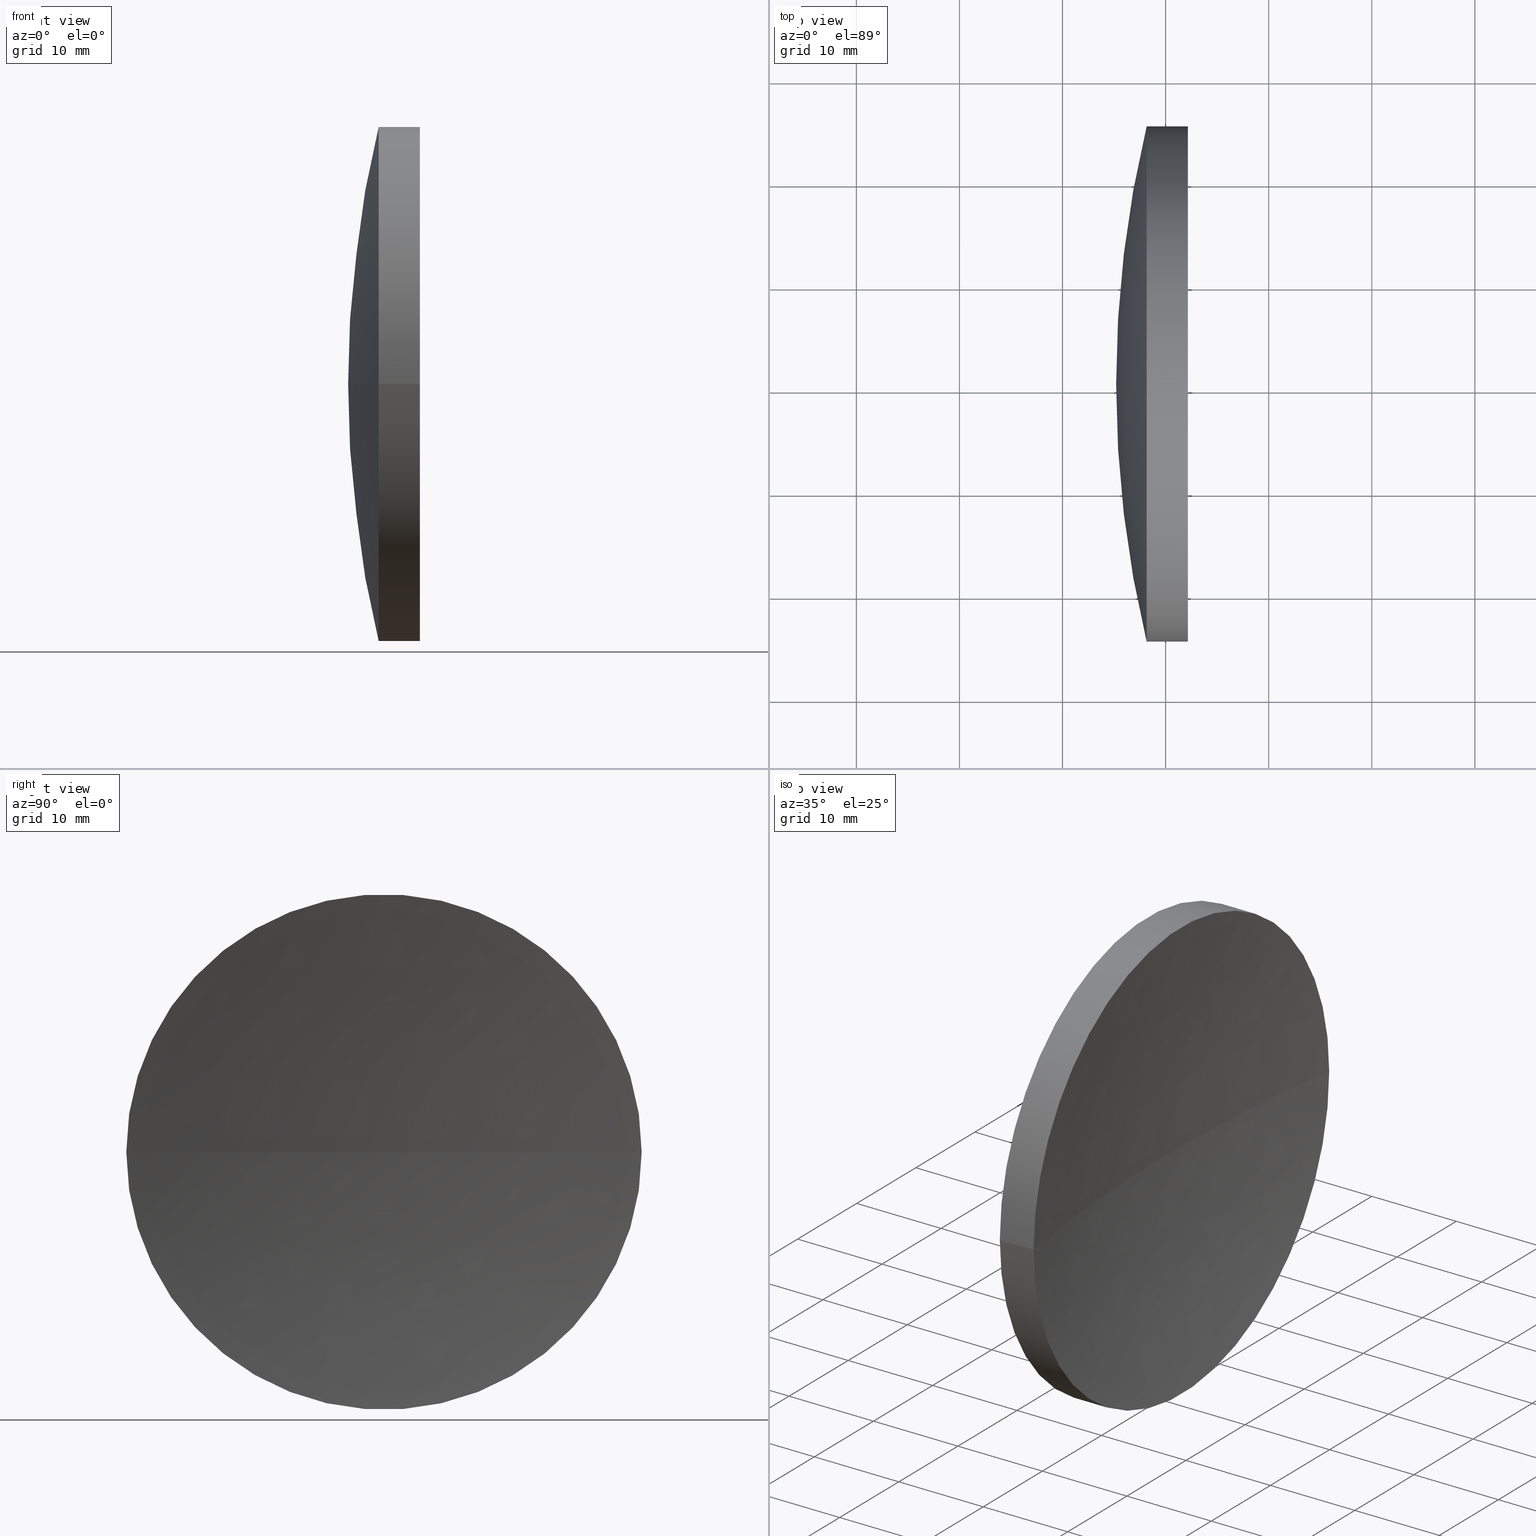
[diagram: canonical four-view strip — front | top / right | iso, engineering-drawing reading convention]
A machine part, canonical four-view strip (front | top / right | iso — engineering-drawing reading convention). The complete STEP part file that produces these views, byte-faithful:
ISO-10303-21;
HEADER;
FILE_DESCRIPTION (( 'STEP AP214' ),
    '1' );
FILE_NAME ('150055.STEP',
    '2019-07-05T09:11:28',
    ( '' ),
    ( '' ),
    'SwSTEP 2.0',
    'SolidWorks 2016',
    '' );
FILE_SCHEMA (( 'AUTOMOTIVE_DESIGN' ));
ENDSEC;

DATA;
#1 = PRODUCT_DEFINITION_FORMATION_WITH_SPECIFIED_SOURCE ( '�κ�', '', #119, .NOT_KNOWN. ) ;
#2 = CYLINDRICAL_SURFACE ( 'NONE', #149, 24.99999999999991100 ) ;
#3 = CARTESIAN_POINT ( 'NONE',  ( 410.6989956717488900, 130.4336809418806000, 0.0000000000000000000 ) ) ;
#4 = DIRECTION ( 'NONE',  ( 1.110223024625161100E-015, -1.000000000000000000, 0.0000000000000000000 ) ) ;
#5 = LINE ( 'NONE', #92, #168 ) ;
#6 = CARTESIAN_POINT ( 'NONE',  ( 231.8889825959263400, 130.4336809418806500, 0.0000000000000000000 ) ) ;
#7 = AXIS2_PLACEMENT_3D ( 'NONE', #153, #66, #132 ) ;
#8 = CARTESIAN_POINT ( 'NONE',  ( 245.1989956717489200, 130.4336809418805100, 0.0000000000000000000 ) ) ;
#9 = FILL_AREA_STYLE ('',( #72 ) ) ;
#10 =( NAMED_UNIT ( * ) SI_UNIT ( $, .STERADIAN. ) SOLID_ANGLE_UNIT ( ) );
#11 = EDGE_CURVE ( 'NONE', #169, #144, #126, .T. ) ;
#12 = CIRCLE ( 'NONE', #109, 24.99999999999989700 ) ;
#13 = COLOUR_RGB ( '',1.000000000000000000, 1.000000000000000000, 1.000000000000000000 ) ;
#14 = FACE_OUTER_BOUND ( 'NONE', #65, .T. ) ;
#15 = VERTEX_POINT ( 'NONE', #89 ) ;
#16 = CARTESIAN_POINT ( 'NONE',  ( 352.1989956717488900, 130.4336809418805700, 0.0000000000000000000 ) ) ;
#17 = CARTESIAN_POINT ( 'NONE',  ( 410.6989956717488900, 130.4336809418806000, 0.0000000000000000000 ) ) ;
#18 =( GEOMETRIC_REPRESENTATION_CONTEXT ( 3 ) GLOBAL_UNCERTAINTY_ASSIGNED_CONTEXT ( ( #84 ) ) GLOBAL_UNIT_ASSIGNED_CONTEXT ( ( #25, #70, #10 ) ) REPRESENTATION_CONTEXT ( 'NONE', 'WORKASPACE' ) );
#19 = DIRECTION ( 'NONE',  ( -8.496118506040342700E-032, 1.224646799147353200E-016, -1.000000000000000000 ) ) ;
#20 = DIRECTION ( 'NONE',  ( -1.000000000000000000, -6.937607244762875000E-016, -0.0000000000000000000 ) ) ;
#21 = DIRECTION ( 'NONE',  ( -6.917277411994742600E-016, 1.000000000000000000, 0.0000000000000000000 ) ) ;
#22 = ORIENTED_EDGE ( 'NONE', *, *, #57, .F. ) ;
#23 = PRODUCT_RELATED_PRODUCT_CATEGORY ( 'part', '', ( #119 ) ) ;
#24 = CARTESIAN_POINT ( 'NONE',  ( 410.6989956717488900, 130.4336809418806000, 0.0000000000000000000 ) ) ;
#25 =( LENGTH_UNIT ( ) NAMED_UNIT ( * ) SI_UNIT ( .MILLI., .METRE. ) );
#26 = EDGE_LOOP ( 'NONE', ( #183, #189, #160, #131 ) ) ;
#27 = EDGE_CURVE ( 'NONE', #169, #152, #76, .T. ) ;
#28 = ORIENTED_EDGE ( 'NONE', *, *, #145, .T. ) ;
#29 = PRESENTATION_STYLE_ASSIGNMENT (( #98 ) ) ;
#30 = CARTESIAN_POINT ( 'NONE',  ( 248.1605412426293100, 130.4336809418806500, 0.0000000000000000000 ) ) ;
#31 = CIRCLE ( 'NONE', #105, 160.5000000000000600 ) ;
#32 = DIRECTION ( 'NONE',  ( -0.0000000000000000000, 0.0000000000000000000, -1.000000000000000000 ) ) ;
#33 = ADVANCED_FACE ( 'NONE', ( #150 ), #88, .F. ) ;
#34 = DIRECTION ( 'NONE',  ( -5.187958058996059700E-016, 1.000000000000000000, 0.0000000000000000000 ) ) ;
#35 = PRODUCT_DEFINITION ( 'δ֪', '', #1, #59 ) ;
#36 = UNCERTAINTY_MEASURE_WITH_UNIT (LENGTH_MEASURE( 1.000000000000000100E-005 ), #123, 'distance_accuracy_value', 'NONE');
#37 = CARTESIAN_POINT ( 'NONE',  ( 252.1579915119416200, 130.4336809418806800, 0.0000000000000000000 ) ) ;
#38 = DIRECTION ( 'NONE',  ( -0.0000000000000000000, 0.0000000000000000000, -1.000000000000000000 ) ) ;
#39 = CIRCLE ( 'NONE', #95, 24.99999999999992500 ) ;
#40 =( NAMED_UNIT ( * ) PLANE_ANGLE_UNIT ( ) SI_UNIT ( $, .RADIAN. ) );
#41 = SURFACE_SIDE_STYLE ('',( #180 ) ) ;
#42 = DIRECTION ( 'NONE',  ( 1.110223024625160500E-015, -1.000000000000000000, 0.0000000000000000000 ) ) ;
#43 = VECTOR ( 'NONE', #135, 1000.000000000000000 ) ;
#44 = EDGE_CURVE ( 'NONE', #144, #152, #162, .T. ) ;
#45 = AXIS2_PLACEMENT_3D ( 'NONE', #86, #157, #42 ) ;
#46 = ORIENTED_EDGE ( 'NONE', *, *, #145, .F. ) ;
#47 = PRESENTATION_LAYER_ASSIGNMENT (  '', '', ( #90 ) ) ;
#48 = FACE_OUTER_BOUND ( 'NONE', #58, .T. ) ;
#49 = CARTESIAN_POINT ( 'NONE',  ( 252.1579915119416200, 105.4336809418807900, -3.061616997868347100E-015 ) ) ;
#50 = LINE ( 'NONE', #112, #43 ) ;
#51 = EDGE_CURVE ( 'NONE', #15, #100, #39, .T. ) ;
#52 = CARTESIAN_POINT ( 'NONE',  ( 0.0000000000000000000, 0.0000000000000000000, 0.0000000000000000000 ) ) ;
#53 = CARTESIAN_POINT ( 'NONE',  ( 252.1579915119416200, 130.4336809418806800, 0.0000000000000000000 ) ) ;
#54 = APPLICATION_PROTOCOL_DEFINITION ( 'draft international standard', 'automotive_design', 1998, #141 ) ;
#55 = EDGE_CURVE ( 'NONE', #100, #169, #50, .T. ) ;
#56 = FACE_OUTER_BOUND ( 'NONE', #26, .T. ) ;
#57 = EDGE_CURVE ( 'NONE', #15, #144, #5, .T. ) ;
#58 = EDGE_LOOP ( 'NONE', ( #181, #138, #46 ) ) ;
#59 = PRODUCT_DEFINITION_CONTEXT ( 'detailed design', #85, 'design' ) ;
#60 = CARTESIAN_POINT ( 'NONE',  ( 352.1989956717488900, 130.4336809418805700, 0.0000000000000000000 ) ) ;
#61 = ORIENTED_EDGE ( 'NONE', *, *, #80, .F. ) ;
#62 = DIRECTION ( 'NONE',  ( 0.0000000000000000000, 1.000000000000000000, 1.224646799147353000E-016 ) ) ;
#63 = FACE_OUTER_BOUND ( 'NONE', #178, .T. ) ;
#64 = AXIS2_PLACEMENT_3D ( 'NONE', #17, #120, #21 ) ;
#65 = EDGE_LOOP ( 'NONE', ( #133, #187, #71 ) ) ;
#66 = DIRECTION ( 'NONE',  ( -0.0000000000000000000, 0.0000000000000000000, 1.000000000000000000 ) ) ;
#67 = DIRECTION ( 'NONE',  ( 1.000000000000000000, 0.0000000000000000000, 0.0000000000000000000 ) ) ;
#68 = EDGE_CURVE ( 'NONE', #144, #169, #12, .T. ) ;
#69 = DIRECTION ( 'NONE',  ( -1.000000000000000000, -6.937607244762875000E-016, -0.0000000000000000000 ) ) ;
#70 =( NAMED_UNIT ( * ) PLANE_ANGLE_UNIT ( ) SI_UNIT ( $, .RADIAN. ) );
#71 = ORIENTED_EDGE ( 'NONE', *, *, #44, .F. ) ;
#72 = FILL_AREA_STYLE_COLOUR ( '', #13 ) ;
#73 = PRESENTATION_LAYER_ASSIGNMENT (  '', '', ( #171 ) ) ;
#74 = FACE_OUTER_BOUND ( 'NONE', #102, .T. ) ;
#75 = ADVANCED_BREP_SHAPE_REPRESENTATION ( '150055', ( #128, #179 ), #155 ) ;
#76 = CIRCLE ( 'NONE', #173, 106.9999999999999900 ) ;
#77 = ADVANCED_FACE ( 'NONE', ( #48 ), #186, .F. ) ;
#78 = DIRECTION ( 'NONE',  ( -1.000000000000000000, -6.937607244762875000E-016, -0.0000000000000000000 ) ) ;
#79 = CYLINDRICAL_SURFACE ( 'NONE', #45, 24.99999999999991100 ) ;
#80 = EDGE_CURVE ( 'NONE', #100, #106, #31, .T. ) ;
#81 = DIRECTION ( 'NONE',  ( -6.917277411994742600E-016, 1.000000000000000000, 0.0000000000000000000 ) ) ;
#82 = FILL_AREA_STYLE ('',( #159 ) ) ;
#83 = DIRECTION ( 'NONE',  ( 1.000000000000000000, 0.0000000000000000000, 0.0000000000000000000 ) ) ;
#84 = UNCERTAINTY_MEASURE_WITH_UNIT (LENGTH_MEASURE( 1.000000000000000100E-005 ), #25, 'distance_accuracy_value', 'NONE');
#85 = APPLICATION_CONTEXT ( 'automotive_design' ) ;
#86 = CARTESIAN_POINT ( 'NONE',  ( 231.8889825959263400, 130.4336809418806500, 0.0000000000000000000 ) ) ;
#87 = AXIS2_PLACEMENT_3D ( 'NONE', #53, #69, #124 ) ;
#88 = SPHERICAL_SURFACE ( 'NONE', #184, 160.5000000000000300 ) ;
#89 = CARTESIAN_POINT ( 'NONE',  ( 252.1579915119416200, 155.4336809418803700, 0.0000000000000000000 ) ) ;
#90 = STYLED_ITEM ( 'NONE', ( #29 ), #128 ) ;
#91 = ORIENTED_EDGE ( 'NONE', *, *, #68, .F. ) ;
#92 = CARTESIAN_POINT ( 'NONE',  ( 231.8889825959263100, 155.4336809418805700, 3.061616997868372000E-015 ) ) ;
#93 = ADVANCED_FACE ( 'NONE', ( #14 ), #116, .T. ) ;
#94 = CARTESIAN_POINT ( 'NONE',  ( 410.6989956717488900, 130.4336809418806000, 0.0000000000000000000 ) ) ;
#95 = AXIS2_PLACEMENT_3D ( 'NONE', #37, #166, #110 ) ;
#96 = EDGE_LOOP ( 'NONE', ( #61, #111, #28 ) ) ;
#97 =( NAMED_UNIT ( * ) SI_UNIT ( $, .STERADIAN. ) SOLID_ANGLE_UNIT ( ) );
#98 = SURFACE_STYLE_USAGE ( .BOTH. , #125 ) ;
#99 = DIRECTION ( 'NONE',  ( 0.0000000000000000000, -0.0000000000000000000, 1.000000000000000000 ) ) ;
#100 = VERTEX_POINT ( 'NONE', #49 ) ;
#101 = PRODUCT_DEFINITION_SHAPE ( 'NONE', 'NONE',  #35 ) ;
#102 = EDGE_LOOP ( 'NONE', ( #22, #143, #146, #91 ) ) ;
#103 = ADVANCED_FACE ( 'NONE', ( #74 ), #2, .T. ) ;
#104 = ORIENTED_EDGE ( 'NONE', *, *, #27, .F. ) ;
#105 = AXIS2_PLACEMENT_3D ( 'NONE', #94, #136, #62 ) ;
#106 = VERTEX_POINT ( 'NONE', #165 ) ;
#107 = CARTESIAN_POINT ( 'NONE',  ( 248.1605412426293100, 130.4336809418806500, 0.0000000000000000000 ) ) ;
#108 = DIRECTION ( 'NONE',  ( 0.0000000000000000000, 1.000000000000000000, 1.224646799147353200E-016 ) ) ;
#109 = AXIS2_PLACEMENT_3D ( 'NONE', #107, #20, #4 ) ;
#110 = DIRECTION ( 'NONE',  ( 0.0000000000000000000, -1.000000000000000000, 0.0000000000000000000 ) ) ;
#111 = ORIENTED_EDGE ( 'NONE', *, *, #51, .F. ) ;
#112 = CARTESIAN_POINT ( 'NONE',  ( 231.8889825959263600, 105.4336809418807400, 0.0000000000000000000 ) ) ;
#113 = APPLICATION_PROTOCOL_DEFINITION ( 'draft international standard', 'automotive_design', 1998, #85 ) ;
#114 = CARTESIAN_POINT ( 'NONE',  ( 352.1989956717488900, 130.4336809418805700, 0.0000000000000000000 ) ) ;
#115 = DIRECTION ( 'NONE',  ( -5.187958058996059700E-016, 1.000000000000000000, 0.0000000000000000000 ) ) ;
#116 = SPHERICAL_SURFACE ( 'NONE', #177, 106.9999999999999900 ) ;
#117 = AXIS2_PLACEMENT_3D ( 'NONE', #24, #99, #83 ) ;
#118 = PRESENTATION_STYLE_ASSIGNMENT (( #174 ) ) ;
#119 = PRODUCT ( '150055', '150055', '', ( #172 ) ) ;
#120 = DIRECTION ( 'NONE',  ( 0.0000000000000000000, 0.0000000000000000000, -1.000000000000000000 ) ) ;
#121 = CIRCLE ( 'NONE', #87, 24.99999999999992500 ) ;
#122 = DIRECTION ( 'NONE',  ( 1.110223024625161100E-015, -1.000000000000000000, 0.0000000000000000000 ) ) ;
#123 =( LENGTH_UNIT ( ) NAMED_UNIT ( * ) SI_UNIT ( .MILLI., .METRE. ) );
#124 = DIRECTION ( 'NONE',  ( 0.0000000000000000000, -1.000000000000000000, 0.0000000000000000000 ) ) ;
#125 = SURFACE_SIDE_STYLE ('',( #176 ) ) ;
#126 = CIRCLE ( 'NONE', #147, 24.99999999999989700 ) ;
#127 = AXIS2_PLACEMENT_3D ( 'NONE', #114, #38, #115 ) ;
#128 = MANIFOLD_SOLID_BREP ( '��ת1', #191 ) ;
#129 = ORIENTED_EDGE ( 'NONE', *, *, #44, .T. ) ;
#130 = SHAPE_DEFINITION_REPRESENTATION ( #101, #75 ) ;
#131 = ORIENTED_EDGE ( 'NONE', *, *, #55, .F. ) ;
#132 = DIRECTION ( 'NONE',  ( 1.000000000000000000, 0.0000000000000000000, 0.0000000000000000000 ) ) ;
#133 = ORIENTED_EDGE ( 'NONE', *, *, #68, .T. ) ;
#134 = CARTESIAN_POINT ( 'NONE',  ( 248.1605412426292500, 155.4336809418805400, 0.0000000000000000000 ) ) ;
#135 = DIRECTION ( 'NONE',  ( -1.000000000000000000, -6.937607244762875000E-016, -0.0000000000000000000 ) ) ;
#136 = DIRECTION ( 'NONE',  ( -8.496118506040342700E-032, 1.224646799147353200E-016, -1.000000000000000000 ) ) ;
#137 = DIRECTION ( 'NONE',  ( -1.000000000000000000, -6.937607244762875000E-016, -0.0000000000000000000 ) ) ;
#138 = ORIENTED_EDGE ( 'NONE', *, *, #80, .T. ) ;
#139 = ORIENTED_EDGE ( 'NONE', *, *, #11, .T. ) ;
#140 =( NAMED_UNIT ( * ) SI_UNIT ( $, .STERADIAN. ) SOLID_ANGLE_UNIT ( ) );
#141 = APPLICATION_CONTEXT ( 'automotive_design' ) ;
#142 = CARTESIAN_POINT ( 'NONE',  ( 248.1605412426293100, 105.4336809418806200, -3.061616997868368400E-015 ) ) ;
#143 = ORIENTED_EDGE ( 'NONE', *, *, #51, .T. ) ;
#144 = VERTEX_POINT ( 'NONE', #134 ) ;
#145 = EDGE_CURVE ( 'NONE', #15, #106, #190, .T. ) ;
#146 = ORIENTED_EDGE ( 'NONE', *, *, #55, .T. ) ;
#147 = AXIS2_PLACEMENT_3D ( 'NONE', #30, #78, #122 ) ;
#148 = SPHERICAL_SURFACE ( 'NONE', #127, 106.9999999999999900 ) ;
#149 = AXIS2_PLACEMENT_3D ( 'NONE', #6, #154, #167 ) ;
#150 = FACE_OUTER_BOUND ( 'NONE', #96, .T. ) ;
#151 = ADVANCED_FACE ( 'NONE', ( #56 ), #79, .T. ) ;
#152 = VERTEX_POINT ( 'NONE', #8 ) ;
#153 = CARTESIAN_POINT ( 'NONE',  ( 352.1989956717488900, 130.4336809418805700, 0.0000000000000000000 ) ) ;
#154 = DIRECTION ( 'NONE',  ( -1.000000000000000000, -6.937607244762875000E-016, -0.0000000000000000000 ) ) ;
#155 =( GEOMETRIC_REPRESENTATION_CONTEXT ( 3 ) GLOBAL_UNCERTAINTY_ASSIGNED_CONTEXT ( ( #175 ) ) GLOBAL_UNIT_ASSIGNED_CONTEXT ( ( #170, #158, #97 ) ) REPRESENTATION_CONTEXT ( 'NONE', 'WORKASPACE' ) );
#156 = DIRECTION ( 'NONE',  ( 0.0000000000000000000, 0.0000000000000000000, 1.000000000000000000 ) ) ;
#157 = DIRECTION ( 'NONE',  ( -1.000000000000000000, -6.937607244762875000E-016, -0.0000000000000000000 ) ) ;
#158 =( NAMED_UNIT ( * ) PLANE_ANGLE_UNIT ( ) SI_UNIT ( $, .RADIAN. ) );
#159 = FILL_AREA_STYLE_COLOUR ( '', #164 ) ;
#160 = ORIENTED_EDGE ( 'NONE', *, *, #11, .F. ) ;
#161 = MECHANICAL_DESIGN_GEOMETRIC_PRESENTATION_REPRESENTATION (  '', ( #90 ), #18 ) ;
#162 = CIRCLE ( 'NONE', #7, 106.9999999999999900 ) ;
#163 = ADVANCED_FACE ( 'NONE', ( #63 ), #148, .T. ) ;
#164 = COLOUR_RGB ( '',1.000000000000000000, 1.000000000000000000, 1.000000000000000000 ) ;
#165 = CARTESIAN_POINT ( 'NONE',  ( 250.1989956717488600, 130.4336809418804800, 0.0000000000000000000 ) ) ;
#166 = DIRECTION ( 'NONE',  ( -1.000000000000000000, -6.937607244762875000E-016, -0.0000000000000000000 ) ) ;
#167 = DIRECTION ( 'NONE',  ( 1.110223024625160500E-015, -1.000000000000000000, 0.0000000000000000000 ) ) ;
#168 = VECTOR ( 'NONE', #137, 1000.000000000000000 ) ;
#169 = VERTEX_POINT ( 'NONE', #142 ) ;
#170 =( LENGTH_UNIT ( ) NAMED_UNIT ( * ) SI_UNIT ( .MILLI., .METRE. ) );
#171 = STYLED_ITEM ( 'NONE', ( #118 ), #75 ) ;
#172 = PRODUCT_CONTEXT ( 'NONE', #141, 'mechanical' ) ;
#173 = AXIS2_PLACEMENT_3D ( 'NONE', #16, #19, #108 ) ;
#174 = SURFACE_STYLE_USAGE ( .BOTH. , #41 ) ;
#175 = UNCERTAINTY_MEASURE_WITH_UNIT (LENGTH_MEASURE( 1.000000000000000100E-005 ), #170, 'distance_accuracy_value', 'NONE');
#176 = SURFACE_STYLE_FILL_AREA ( #9 ) ;
#177 = AXIS2_PLACEMENT_3D ( 'NONE', #60, #32, #34 ) ;
#178 = EDGE_LOOP ( 'NONE', ( #104, #139, #129 ) ) ;
#179 = AXIS2_PLACEMENT_3D ( 'NONE', #52, #156, #67 ) ;
#180 = SURFACE_STYLE_FILL_AREA ( #82 ) ;
#181 = ORIENTED_EDGE ( 'NONE', *, *, #192, .F. ) ;
#182 = MECHANICAL_DESIGN_GEOMETRIC_PRESENTATION_REPRESENTATION (  '', ( #171 ), #188 ) ;
#183 = ORIENTED_EDGE ( 'NONE', *, *, #192, .T. ) ;
#184 = AXIS2_PLACEMENT_3D ( 'NONE', #3, #185, #81 ) ;
#185 = DIRECTION ( 'NONE',  ( 0.0000000000000000000, 0.0000000000000000000, -1.000000000000000000 ) ) ;
#186 = SPHERICAL_SURFACE ( 'NONE', #64, 160.5000000000000300 ) ;
#187 = ORIENTED_EDGE ( 'NONE', *, *, #27, .T. ) ;
#188 =( GEOMETRIC_REPRESENTATION_CONTEXT ( 3 ) GLOBAL_UNCERTAINTY_ASSIGNED_CONTEXT ( ( #36 ) ) GLOBAL_UNIT_ASSIGNED_CONTEXT ( ( #123, #40, #140 ) ) REPRESENTATION_CONTEXT ( 'NONE', 'WORKASPACE' ) );
#189 = ORIENTED_EDGE ( 'NONE', *, *, #57, .T. ) ;
#190 = CIRCLE ( 'NONE', #117, 160.5000000000000300 ) ;
#191 = CLOSED_SHELL ( 'NONE', ( #151, #77, #93, #163, #33, #103 ) ) ;
#192 = EDGE_CURVE ( 'NONE', #100, #15, #121, .T. ) ;
ENDSEC;
END-ISO-10303-21;
